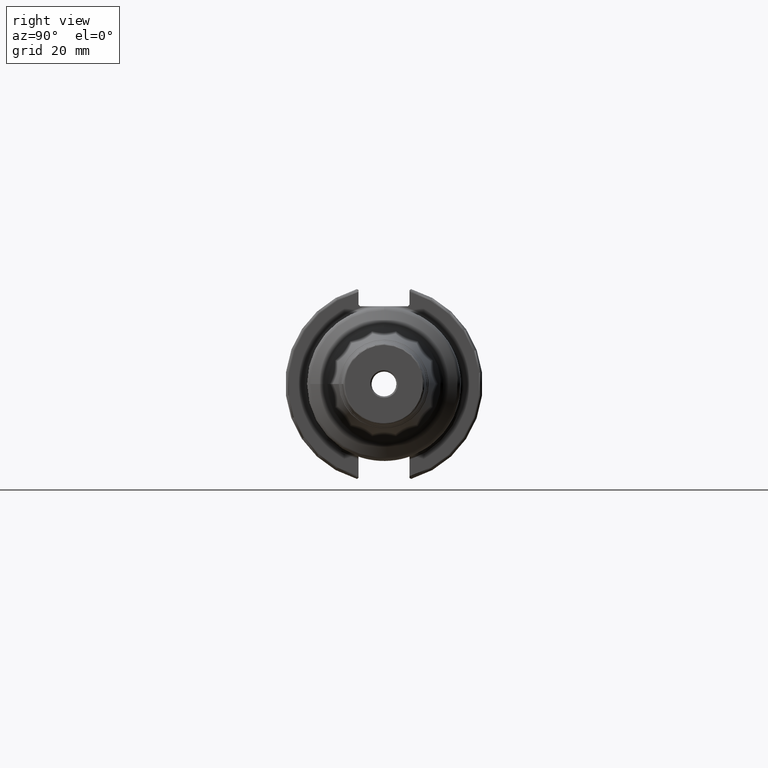
[diagram: clean part render]
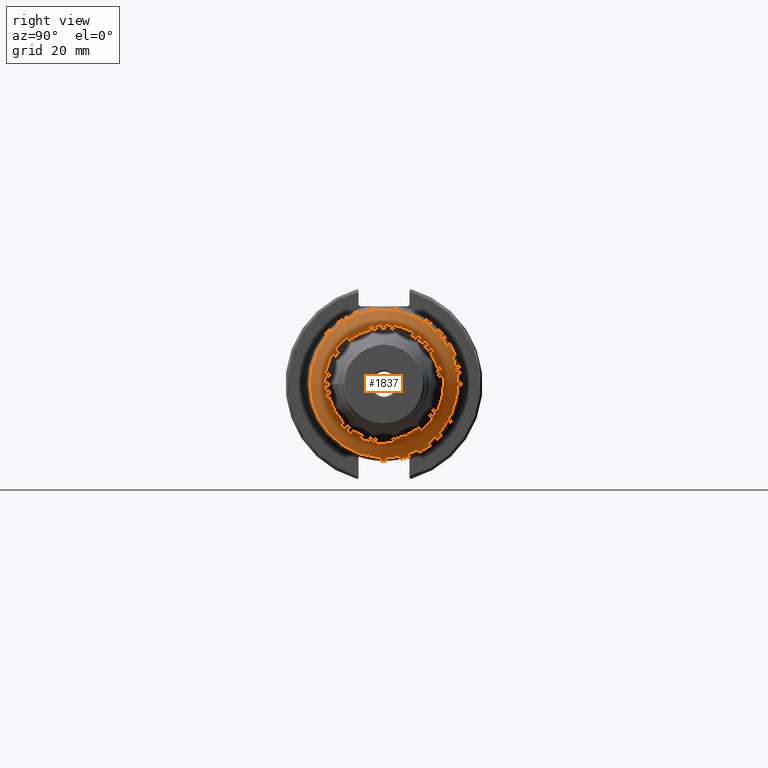
[diagram: same view with one face highlighted and labeled with its STEP entity id]
A machine part, right view. The second image highlights one B-rep face of the part: STEP entity #1837.
In plain terms, the highlighted conical surface has half-angle 60 deg.
Its self-contained STEP definition (entity closure, byte-faithful):
#105=CONICAL_SURFACE('',#1984,21.495388964152,1.0471975511966);
#185=FACE_OUTER_BOUND('',#294,.T.);
#294=EDGE_LOOP('',(#1256,#1257,#1258,#1259,#1260,#1261));
#414=LINE('',#2957,#512);
#512=VECTOR('',#2271,21.495388964152);
#614=CIRCLE('',#1979,19.181204786337);
#618=CIRCLE('',#1983,19.181204786337);
#619=CIRCLE('',#1985,23.75);
#620=CIRCLE('',#1986,23.75);
#745=VERTEX_POINT('',#2946);
#746=VERTEX_POINT('',#2947);
#749=VERTEX_POINT('',#2956);
#750=VERTEX_POINT('',#2958);
#945=EDGE_CURVE('',#745,#746,#614,.T.);
#949=EDGE_CURVE('',#746,#745,#618,.T.);
#950=EDGE_CURVE('',#745,#749,#414,.T.);
#951=EDGE_CURVE('',#750,#749,#619,.T.);
#952=EDGE_CURVE('',#749,#750,#620,.T.);
#1256=ORIENTED_EDGE('',*,*,#945,.F.);
#1257=ORIENTED_EDGE('',*,*,#950,.T.);
#1258=ORIENTED_EDGE('',*,*,#951,.F.);
#1259=ORIENTED_EDGE('',*,*,#952,.F.);
#1260=ORIENTED_EDGE('',*,*,#950,.F.);
#1261=ORIENTED_EDGE('',*,*,#949,.F.);
#1837=ADVANCED_FACE('',(#185),#105,.T.);
#1979=AXIS2_PLACEMENT_3D('',#2948,#2259,#2260);
#1983=AXIS2_PLACEMENT_3D('',#2954,#2267,#2268);
#1984=AXIS2_PLACEMENT_3D('',#2955,#2269,#2270);
#1985=AXIS2_PLACEMENT_3D('',#2959,#2272,#2273);
#1986=AXIS2_PLACEMENT_3D('',#2960,#2274,#2275);
#2259=DIRECTION('center_axis',(1.,0.,0.));
#2260=DIRECTION('ref_axis',(0.,-1.,3.06161699786838E-17));
#2267=DIRECTION('center_axis',(1.,0.,0.));
#2268=DIRECTION('ref_axis',(0.,-1.,3.06161699786838E-17));
#2269=DIRECTION('center_axis',(-1.,0.,0.));
#2270=DIRECTION('ref_axis',(0.,1.,0.));
#2271=DIRECTION('',(-0.500000000000001,-0.866025403784438,-1.06057523872491E-16));
#2272=DIRECTION('center_axis',(-1.,0.,0.));
#2273=DIRECTION('ref_axis',(0.,-1.,3.06161699786838E-17));
#2274=DIRECTION('center_axis',(-1.,0.,0.));
#2275=DIRECTION('ref_axis',(0.,-1.,3.06161699786838E-17));
#2946=CARTESIAN_POINT('',(49.4570443003616,-19.181204786337,-2.34902010453775E-15));
#2947=CARTESIAN_POINT('',(49.4570443003616,-2.34902010453775E-15,19.181204786337));
#2948=CARTESIAN_POINT('Origin',(49.4570443003616,0.,-2.93627513067218E-15));
#2954=CARTESIAN_POINT('Origin',(49.4570443003616,0.,-2.93627513067218E-15));
#2955=CARTESIAN_POINT('Origin',(48.1209494423457,0.,0.));
#2956=CARTESIAN_POINT('',(46.8192491538809,-23.75,-2.90853614797496E-15));
#2957=CARTESIAN_POINT('',(48.1209494423457,-21.495388964152,-2.63242592913761E-15));
#2958=CARTESIAN_POINT('',(46.8192491538809,-2.90853614797496E-15,23.75));
#2959=CARTESIAN_POINT('Origin',(46.8192491538809,0.,-3.6356701849687E-15));
#2960=CARTESIAN_POINT('Origin',(46.8192491538809,0.,-3.6356701849687E-15));